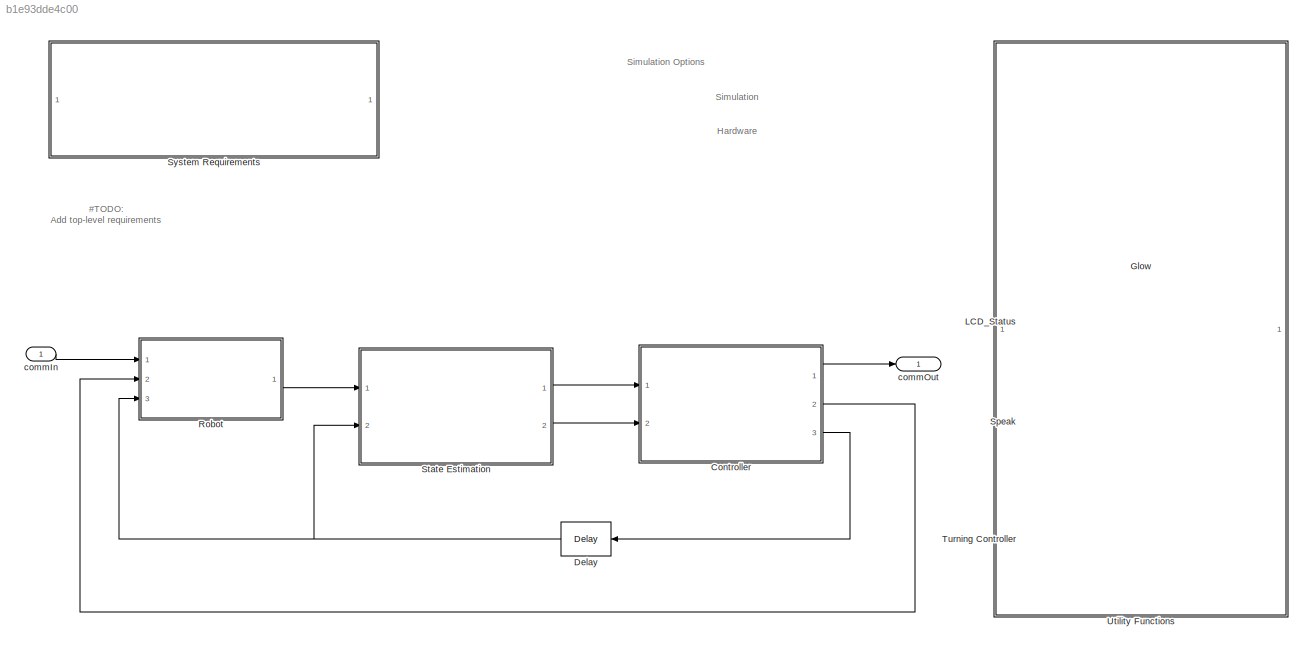
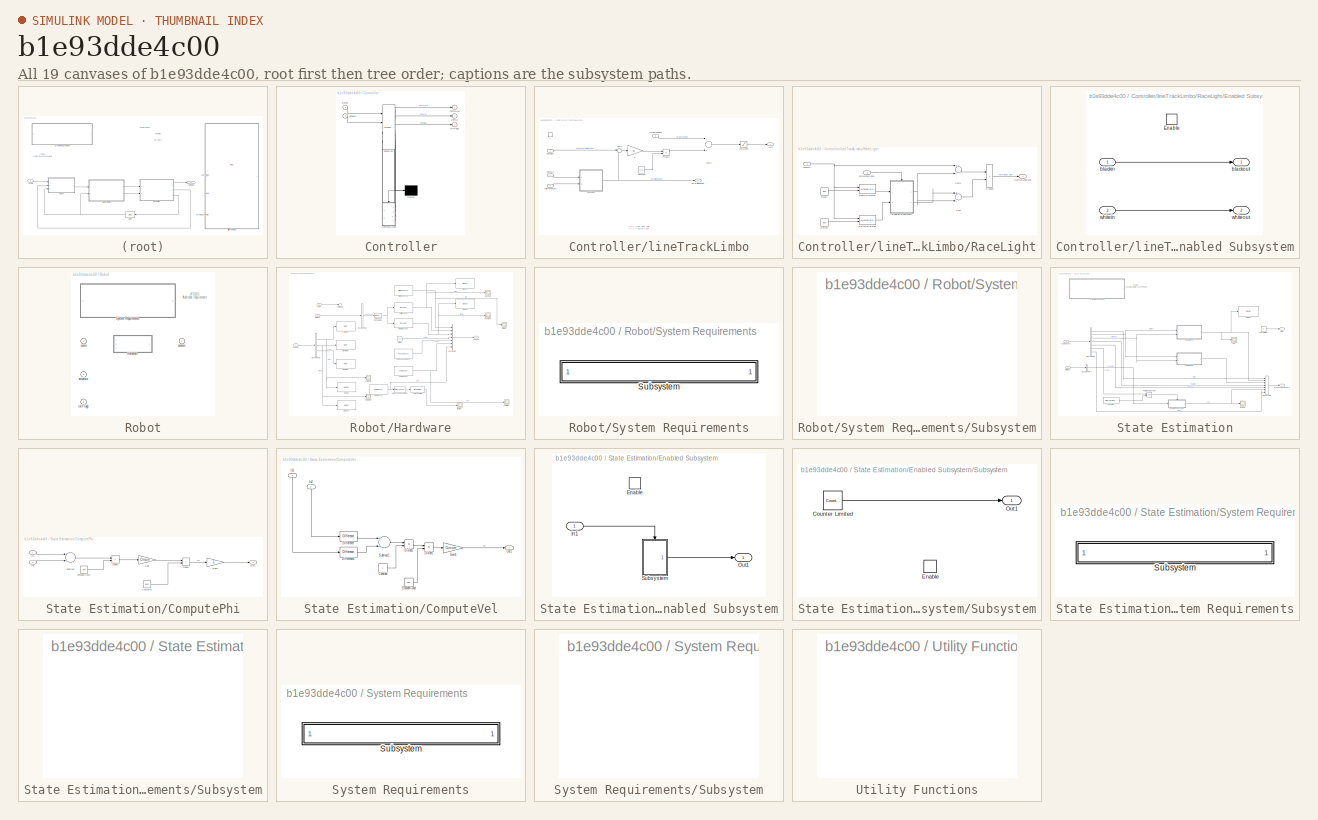
[diagram: thumbnail index - all 19 canvases of the model, root first then tree order]
MODEL slx_b1e93dde4c00
KIND model
BLOCK [SubSystem] Controller
  ErrorFcn = Stateflow.Translate.translate
  PermitHierarchicalResolution = ExplicitOnly
  Ports = [2, 3]
  RequestExecContextInheritance = off
  SFBlockType = Chart
  TreatAsAtomicUnit = on
BLOCK [Demux] Controller/ Demux 
  Outputs = 1
  Ports = [1, 1]
BLOCK [S-Function] Controller/ SFunction 
  EnableBusSupport = on
  FunctionName = sf_sfun
  Parameters = soundVal
  PortCounts = [4 8]
  Ports = [4, 8]
  Tag = Stateflow S-Function HydraLeg 5
BLOCK [Outport] Controller/commOut
  IconDisplay = Port number
BLOCK [Outport] Controller/control
  IconDisplay = Port number
  Port = 2
BLOCK [Outport] Controller/initFlags
  IconDisplay = Port number
  Port = 3
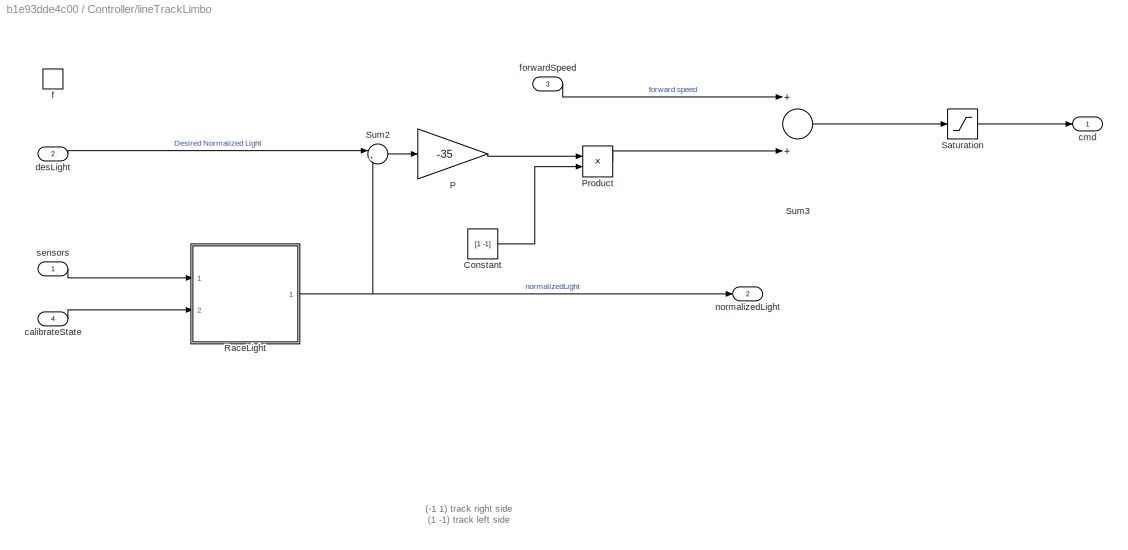
BLOCK [SubSystem] Controller/lineTrackLimbo
  Ports = [4, 2, 0, 1]
  PreDeleteFcn = Stateflow.SLINSF.SimulinkMan.removePreDeleteFcn
  RequestExecContextInheritance = off
  UndoDeleteFcn = Stateflow.SLINSF.SimulinkMan.restorePreDeleteFcn
BLOCK [Constant] Controller/lineTrackLimbo/Constant
  OutDataTypeStr = single
  SampleTime = -1
  Value = [1 -1]
BLOCK [Gain] Controller/lineTrackLimbo/P
  Gain = -35
  OutDataTypeStr = Inherit: Inherit via internal rule
  ParamDataTypeStr = Inherit: Inherit via internal rule
  SaturateOnIntegerOverflow = off
BLOCK [Product] Controller/lineTrackLimbo/Product
  InputSameDT = off
  OutDataTypeStr = Inherit: Inherit via internal rule
  Ports = [2, 1]
  RndMeth = Floor
  SaturateOnIntegerOverflow = off
BLOCK [SubSystem] Controller/lineTrackLimbo/RaceLight
  Ports = [2, 1]
  RequestExecContextInheritance = off
BLOCK [SubSystem] Controller/lineTrackLimbo/RaceLight/Enabled Subsystem
  Ports = [2, 2, 1]
  RequestExecContextInheritance = off
  TreatAsAtomicUnit = on
BLOCK [EnablePort] Controller/lineTrackLimbo/RaceLight/Enabled Subsystem/Enable
  Ports = []
BLOCK [Inport] Controller/lineTrackLimbo/RaceLight/Enabled Subsystem/blackin
  IconDisplay = Port number
BLOCK [Outport] Controller/lineTrackLimbo/RaceLight/Enabled Subsystem/blackout
  IconDisplay = Port number
BLOCK [Inport] Controller/lineTrackLimbo/RaceLight/Enabled Subsystem/whitein
  IconDisplay = Port number
  Port = 2
BLOCK [Outport] Controller/lineTrackLimbo/RaceLight/Enabled Subsystem/whiteout
  IconDisplay = Port number
  Port = 2
BLOCK [Outport] Controller/lineTrackLimbo/RaceLight/NormalizedLight
  IconDisplay = Port number
BLOCK [Product] Controller/lineTrackLimbo/RaceLight/Product
  InputSameDT = off
  Inputs = */
  OutDataTypeStr = Inherit: Inherit via internal rule
  Ports = [2, 1]
  RndMeth = Floor
  SaturateOnIntegerOverflow = off
BLOCK [Sum] Controller/lineTrackLimbo/RaceLight/Sum
  InputSameDT = off
  Inputs = +-
  OutDataTypeStr = Inherit: Inherit via internal rule
  Ports = [2, 1]
  SaturateOnIntegerOverflow = off
BLOCK [Sum] Controller/lineTrackLimbo/RaceLight/Sum1
  InputSameDT = off
  Inputs = +-
  OutDataTypeStr = Inherit: Inherit via internal rule
  Ports = [2, 1]
  SaturateOnIntegerOverflow = off
BLOCK [Constant] Controller/lineTrackLimbo/RaceLight/black1
  OutDataTypeStr = boolean
  SampleTime = -1
  Value = false
BLOCK [Reference] Controller/lineTrackLimbo/RaceLight/blackCalibrated   REF=simulink/Math
Operations/MinMax
Running
Resettable
  Function = min
  Ports = [2, 1]
  SourceBlock = simulink/Math\nOperations/MinMax\nRunning\nResettable
  SourceType = MinMax Running Resettable
  vinit = 10
BLOCK [Inport] Controller/lineTrackLimbo/RaceLight/calibrateState
  IconDisplay = Port number
  LockScale = on
  OutDataTypeStr = boolean
  Port = 2
  PortDimensions = 1
  SignalType = real
  VarSizeSig = No
BLOCK [Inport] Controller/lineTrackLimbo/RaceLight/sensors
  IconDisplay = Port number
  LockScale = on
  OutDataTypeStr = single
  PortDimensions = 1
  SignalType = real
  VarSizeSig = No
BLOCK [Constant] Controller/lineTrackLimbo/RaceLight/white2
  OutDataTypeStr = boolean
  SampleTime = -1
  Value = false
BLOCK [Reference] Controller/lineTrackLimbo/RaceLight/whiteCalibrated  REF=simulink/Math
Operations/MinMax
Running
Resettable
  Function = max
  Ports = [2, 1]
  SourceBlock = simulink/Math\nOperations/MinMax\nRunning\nResettable
  SourceType = MinMax Running Resettable
  vinit = 90
BLOCK [Saturate] Controller/lineTrackLimbo/Saturation
  InputPortMap = u0
  LowerLimit = -100
  OutDataTypeStr = single
  Ports = [1, 1]
  UpperLimit = 100
BLOCK [Sum] Controller/lineTrackLimbo/Sum2
  IconShape = round
  InputSameDT = off
  Inputs = |+-
  OutDataTypeStr = Inherit: Inherit via internal rule
  Ports = [2, 1]
  SaturateOnIntegerOverflow = off
BLOCK [Sum] Controller/lineTrackLimbo/Sum3
  InputSameDT = off
  OutDataTypeStr = Inherit: Inherit via internal rule
  Ports = [2, 1]
  SaturateOnIntegerOverflow = off
BLOCK [Inport] Controller/lineTrackLimbo/calibrateState
  IconDisplay = Port number
  LockScale = on
  OutDataTypeStr = boolean
  Port = 4
  PortDimensions = 1
  SignalType = real
  VarSizeSig = No
BLOCK [Outport] Controller/lineTrackLimbo/cmd
  IconDisplay = Port number
  OutDataTypeStr = single
  PortDimensions = 2
  SamplingMode = Sample based
  SignalType = real
  VarSizeSig = No
BLOCK [Inport] Controller/lineTrackLimbo/desLight
  IconDisplay = Port number
  OutDataTypeStr = single
  Port = 2
  PortDimensions = 1
  SignalType = real
  VarSizeSig = No
BLOCK [TriggerPort] Controller/lineTrackLimbo/f
  CopyFcn = Stateflow.SLINSF.SimulinkMan.removeBlockPreDeleteFcn
  Ports = []
  PreDeleteFcn = Stateflow.SLINSF.SimulinkMan.unsafePredeleteFcn
  StatesWhenEnabling = held
  TriggerType = function-call
BLOCK [Inport] Controller/lineTrackLimbo/forwardSpeed
  IconDisplay = Port number
  OutDataTypeStr = single
  Port = 3
  PortDimensions = 2
  SignalType = real
  VarSizeSig = No
BLOCK [Outport] Controller/lineTrackLimbo/normalizedLight
  IconDisplay = Port number
  OutDataTypeStr = single
  Port = 2
  PortDimensions = 1
  SamplingMode = Sample based
  SignalType = real
  VarSizeSig = No
BLOCK [Inport] Controller/lineTrackLimbo/sensors
  IconDisplay = Port number
  LockScale = on
  OutDataTypeStr = single
  PortDimensions = 1
  SignalType = real
  VarSizeSig = No
BLOCK [Inport] Controller/sensors
  IconDisplay = Port number
  Port = 2
BLOCK [Inport] Controller/states
  IconDisplay = Port number
BLOCK [Delay] Delay
  AttributesFormatString = Removes algebraic loop
  DelayLength = 1
  InputPortMap = u0
  Ports = [1, 1]
  SampleTime = tModel
BLOCK [Reference] Glow  REF=EV3Fcns/Glow
  Ports = [0, 0, 0, 1]
  SourceBlock = EV3Fcns/Glow
  SourceType = SubSystem
BLOCK [Reference] LCD_Status  REF=EV3Fcns/LCD_Status
  Ports = [0, 0, 0, 1]
  SourceBlock = EV3Fcns/LCD_Status
  SourceType = SubSystem
BLOCK [SubSystem] Robot
  OverrideUsingVariant = HardwareVar
  Ports = [3, 1]
  RequestExecContextInheritance = off
  Variant = on
  VariantControl = Variant1
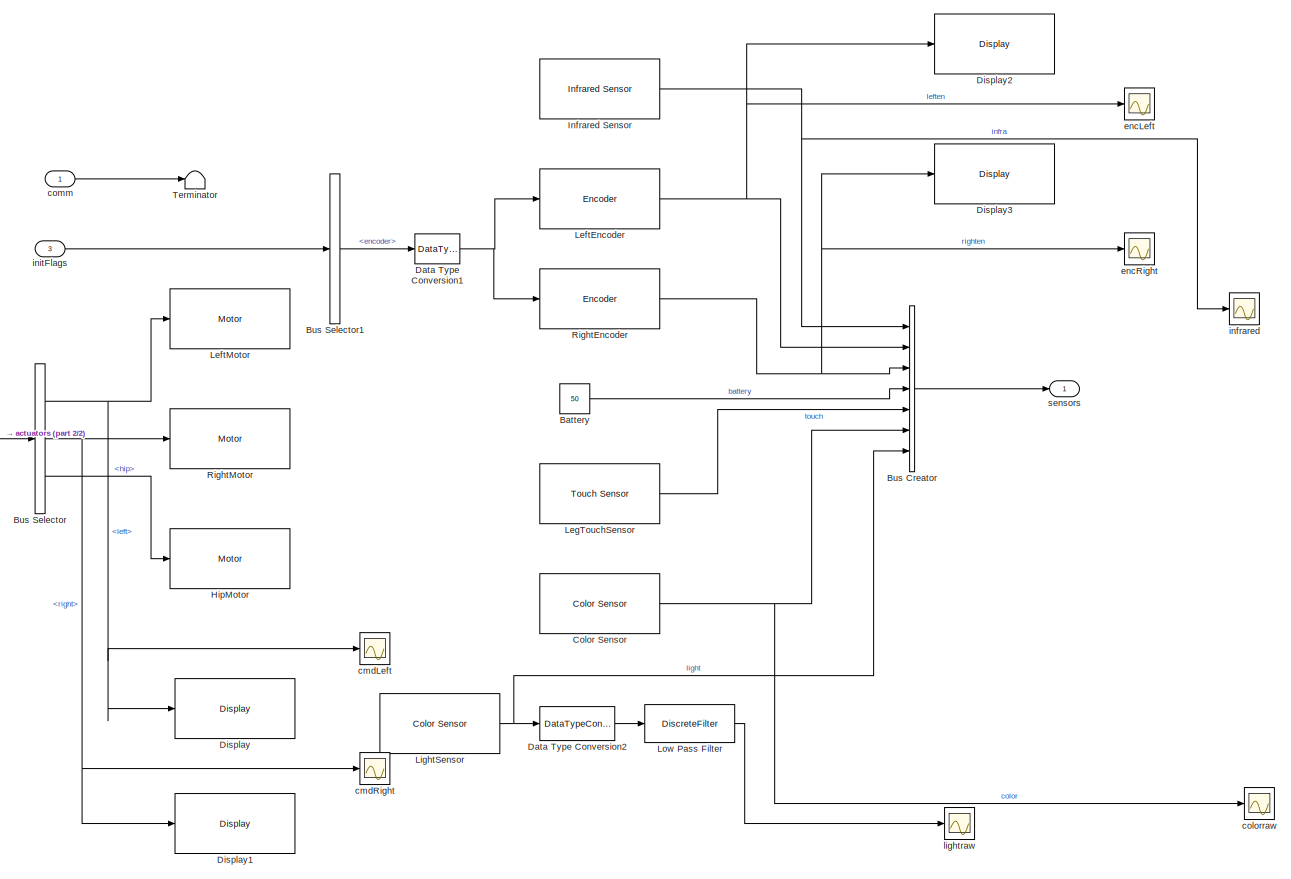
[diagram: Robot/Hardware - part 1/2, most of the canvas]
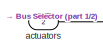
[diagram: Robot/Hardware - part 2/2, middle left region]
BLOCK [SubSystem] Robot/Hardware
  Ports = [3, 1]
  RequestExecContextInheritance = off
  VariantControl = HardwareVar
BLOCK [Constant] Robot/Hardware/Battery
  OutDataTypeStr = uint8
  SampleTime = tModel
  Value = 50
BLOCK [BusCreator] Robot/Hardware/Bus Creator
  DisplayOption = bar
  Inputs = 7
  OutDataTypeStr = Bus: Sensors_Bus
  Ports = [7, 1]
BLOCK [BusSelector] Robot/Hardware/Bus Selector
  OutputSignals = left,right,hip
  Ports = [1, 3]
BLOCK [BusSelector] Robot/Hardware/Bus Selector1
  OutputSignals = encoder
  Ports = [1, 1]
BLOCK [Reference] Robot/Hardware/Color Sensor  REF=legoev3lib/Color Sensor
  Ports = [0, 1]
  SourceBlock = legoev3lib/Color Sensor
  SourceType = LEGO MINDSTORMS EV3 Color Sensor
  mode = Ambient light intensity
  portNumber = 4
  sampleTime = tModel
BLOCK [DataTypeConversion] Robot/Hardware/Data Type Conversion1
  OutDataTypeStr = int8
  RndMeth = Floor
  SaturateOnIntegerOverflow = off
BLOCK [DataTypeConversion] Robot/Hardware/Data Type Conversion2
  Commented = on
  OutDataTypeStr = double
  RndMeth = Floor
  SaturateOnIntegerOverflow = off
BLOCK [Reference] Robot/Hardware/Display  REF=legoev3lib/Display
  Ports = [1]
  SourceBlock = legoev3lib/Display
  SourceType = LEGO MINDSTORMS EV3 Display
  slcdFormat = Decimal
  slcdLine = 1
  slcdStr = Left
BLOCK [Reference] Robot/Hardware/Display1  REF=legoev3lib/Display
  Ports = [1]
  SourceBlock = legoev3lib/Display
  SourceType = LEGO MINDSTORMS EV3 Display
  slcdFormat = Decimal
  slcdLine = 2
  slcdStr = Right
BLOCK [Reference] Robot/Hardware/Display2  REF=legoev3lib/Display
  Ports = [1]
  SourceBlock = legoev3lib/Display
  SourceType = LEGO MINDSTORMS EV3 Display
  slcdFormat = Decimal
  slcdLine = 4
  slcdStr = LeftEn
BLOCK [Reference] Robot/Hardware/Display3  REF=legoev3lib/Display
  Ports = [1]
  SourceBlock = legoev3lib/Display
  SourceType = LEGO MINDSTORMS EV3 Display
  slcdFormat = Decimal
  slcdLine = 5
  slcdStr = RightEn
BLOCK [Reference] Robot/Hardware/HipMotor  REF=legoev3lib/Motor
  Ports = [1]
  SourceBlock = legoev3lib/Motor
  SourceType = LEGO MINDSTORMS EV3 Motor
  sportNumber = D
  sstopAction = Brake
BLOCK [Reference] Robot/Hardware/Infrared Sensor  REF=legoev3lib/Infrared Sensor
  Ports = [0, 1]
  SourceBlock = legoev3lib/Infrared Sensor
  SourceType = LEGO MINDSTORMS EV3 Infrared Sensor
  channelNumber = 1
  portNumber = 2
  sampleTime = tModel
BLOCK [Reference] Robot/Hardware/LeftEncoder  REF=legoev3lib/Encoder
  Ports = [1, 1]
  SourceBlock = legoev3lib/Encoder
  SourceType = LEGO MINDSTORMS EV3 Encoder
  opMode = Reset by external signal
  portNumber = B
  sampleTime = tModel
BLOCK [Reference] Robot/Hardware/LeftMotor  REF=legoev3lib/Motor
  Ports = [1]
  SourceBlock = legoev3lib/Motor
  SourceType = LEGO MINDSTORMS EV3 Motor
  sportNumber = B
  sstopAction = Brake
BLOCK [Reference] Robot/Hardware/LegTouchSensor  REF=legoev3lib/Touch Sensor
  Ports = [0, 1]
  SourceBlock = legoev3lib/Touch Sensor
  SourceType = LEGO MINDSTORMS EV3 Touch Sensor
  portNumber = 1
  sampleTime = tModel
BLOCK [Reference] Robot/Hardware/LightSensor  REF=legoev3lib/Color Sensor
  Ports = [0, 1]
  SourceBlock = legoev3lib/Color Sensor
  SourceType = LEGO MINDSTORMS EV3 Color Sensor
  mode = Reflected light intensity
  portNumber = 3
  sampleTime = tModel
BLOCK [DiscreteFilter] Robot/Hardware/Low Pass Filter
  Commented = on
  Denominator = [1 -0.99]
  InputPortMap = u0
  Numerator = [.01]
  Ports = [1, 1]
BLOCK [Reference] Robot/Hardware/RightEncoder  REF=legoev3lib/Encoder
  Ports = [1, 1]
  SourceBlock = legoev3lib/Encoder
  SourceType = LEGO MINDSTORMS EV3 Encoder
  opMode = Reset by external signal
  portNumber = A
  sampleTime = tModel
BLOCK [Reference] Robot/Hardware/RightMotor  REF=legoev3lib/Motor
  Ports = [1]
  SourceBlock = legoev3lib/Motor
  SourceType = LEGO MINDSTORMS EV3 Motor
  sportNumber = A
  sstopAction = Brake
BLOCK [Terminator] Robot/Hardware/Terminator
BLOCK [Inport] Robot/Hardware/actuators
  IconDisplay = Port number
  Port = 2
BLOCK [Scope] Robot/Hardware/cmdLeft
  Floating = off
  NumInputPorts = 1
  Ports = [1]
  SaveName = ScopeData4
  ShowLegends = off
  YMax = 8
  YMin = 7
BLOCK [Scope] Robot/Hardware/cmdRight
  Floating = off
  NumInputPorts = 1
  Ports = [1]
  SaveName = ScopeData5
  ShowLegends = off
  YMax = 8
  YMin = 7
BLOCK [Scope] Robot/Hardware/colorraw
  Floating = off
  NumInputPorts = 1
  Ports = [1]
  SaveName = ScopeData1
  ShowLegends = off
  YMax = 1
  YMin = 0
BLOCK [Inport] Robot/Hardware/comm
  IconDisplay = Port number
BLOCK [Scope] Robot/Hardware/encLeft
  Floating = off
  NumInputPorts = 1
  Ports = [1]
  SaveName = ScopeData6
  ShowLegends = off
  YMax = 1
  YMin = -1
  ZoomMode = xonly
BLOCK [Scope] Robot/Hardware/encRight
  Floating = off
  NumInputPorts = 1
  Ports = [1]
  SaveName = ScopeData7
  ShowLegends = off
  TimeRange = 10
  YMax = 8
  YMin = 7
  ZoomMode = xonly
BLOCK [Scope] Robot/Hardware/infrared
  Floating = off
  NumInputPorts = 1
  Ports = [1]
  SaveName = ScopeData8
  ShowLegends = off
  TimeRange = 10
  YMax = 9
  YMin = 0
  ZoomMode = xonly
BLOCK [Inport] Robot/Hardware/initFlags
  IconDisplay = Port number
  Port = 3
BLOCK [Scope] Robot/Hardware/lightraw
  Floating = off
  NumInputPorts = 1
  Ports = [1]
  ShowLegends = off
  YMax = 10.15
  YMin = 9.75
BLOCK [Outport] Robot/Hardware/sensors
  IconDisplay = Port number
  OutDataTypeStr = Bus: Sensors_Bus
BLOCK [SubSystem] Robot/System Requirements
  CopyFcn = rmidispblock('create',gcbh)
  DeleteFcn = rmidispblock('delete',gcbh)
  LoadFcn = rmidispblock('load',gcbh)
  ModelCloseFcn = rmidispblock('close',gcbh)
  MoveFcn = rmidispblock('move',gcbh)
  OpenFcn = rmidispblock('open',gcbh)
  Ports = []
  PostSaveFcn = rmidispblock('open',gcbh)
  PreSaveFcn = rmidispblock('close',gcbh)
  RequestExecContextInheritance = off
  VariantControl = Variant
BLOCK [SubSystem] Robot/System Requirements/Subsystem
  OpenFcn = rmidispblock('openReq',gcbh);
  Ports = []
  RequestExecContextInheritance = off
BLOCK [Inport] Robot/actuators
  IconDisplay = Port number
  OutDataTypeStr = Bus: ControlBus
  Port = 2
BLOCK [Inport] Robot/comm
  IconDisplay = Port number
  OutDataTypeStr = Enum: Comm
BLOCK [Inport] Robot/initFlags
  IconDisplay = Port number
  OutDataTypeStr = Bus: InitBus
  Port = 3
BLOCK [Outport] Robot/sensors
  IconDisplay = Port number
  OutDataTypeStr = Bus: Sensors_Bus
BLOCK [Reference] Speak  REF=EV3Fcns/Speak
  Ports = [0, 0, 0, 1]
  SourceBlock = EV3Fcns/Speak
  SourceType = SubSystem
BLOCK [SubSystem] State Estimation
  Ports = [2, 2]
  RequestExecContextInheritance = off
BLOCK [BusCreator] State Estimation/Bus Creator
  DisplayOption = bar
  Inputs = 7
  Ports = [7, 1]
BLOCK [BusSelector] State Estimation/Bus Selector
  OutputSignals = infra,leften,righten,battery,touch,color,light
  Ports = [1, 7]
BLOCK [BusSelector] State Estimation/Bus Selector1
  OutputSignals = counter
  Ports = [1, 1]
BLOCK [SubSystem] State Estimation/ComputePhi
  Ports = [2, 1]
  RequestExecContextInheritance = off
BLOCK [Constant] State Estimation/ComputePhi/Constant1
  OutDataTypeStr = single
  SampleTime = tModel
  Value = lever
BLOCK [Product] State Estimation/ComputePhi/Divide
  InputSameDT = off
  Inputs = */
  OutDataTypeStr = single
  Ports = [2, 1]
  RndMeth = Floor
  SaturateOnIntegerOverflow = off
BLOCK [Product] State Estimation/ComputePhi/Divide1
  InputSameDT = off
  Inputs = */
  OutDataTypeStr = single
  Ports = [2, 1]
  RndMeth = Floor
  SaturateOnIntegerOverflow = off
BLOCK [Constant] State Estimation/ComputePhi/EncoderConst
  OutDataTypeStr = int32
  SampleTime = tModel
  Value = 360
BLOCK [Gain] State Estimation/ComputePhi/Gain
  Gain = Circum
  OutDataTypeStr = single
  ParamDataTypeStr = Inherit: Inherit via internal rule
  SaturateOnIntegerOverflow = off
BLOCK [Gain] State Estimation/ComputePhi/Gain1
  Gain = -1
  OutDataTypeStr = single
  ParamDataTypeStr = Inherit: Inherit via internal rule
  SaturateOnIntegerOverflow = off
BLOCK [Inport] State Estimation/ComputePhi/In1
  IconDisplay = Port number
BLOCK [Inport] State Estimation/ComputePhi/In2
  IconDisplay = Port number
  Port = 2
BLOCK [Outport] State Estimation/ComputePhi/Out1
  IconDisplay = Port number
BLOCK [Sum] State Estimation/ComputePhi/Subtract
  InputSameDT = off
  Inputs = +-
  OutDataTypeStr = Inherit: Inherit via internal rule
  Ports = [2, 1]
  SaturateOnIntegerOverflow = off
BLOCK [SubSystem] State Estimation/ComputeVel
  Ports = [2, 1]
  RequestExecContextInheritance = off
BLOCK [Constant] State Estimation/ComputeVel/Constant
  OutDataTypeStr = uint8
  SampleTime = tModel
  Value = 2
BLOCK [Reference] State Estimation/ComputeVel/Difference  REF=simulink/Discrete/Difference
  DoSatur = off
  ICPrevInput = 0.0
  InputProcessing = Inherited
  LockScale = off
  OutDataType = fixdt(1, 16)
  OutDataTypeStr = single
  OutMax = []
  OutMin = []
  OutScaling = 2^-10
  OutputDataTypeScalingMode = single
  Ports = [1, 1]
  RndMeth = Floor
  SourceBlock = simulink/Discrete/Difference
  SourceType = Difference
BLOCK [Reference] State Estimation/ComputeVel/Difference1  REF=simulink/Discrete/Difference
  DoSatur = off
  ICPrevInput = 0.0
  InputProcessing = Inherited
  LockScale = off
  OutDataType = fixdt(1, 16)
  OutDataTypeStr = single
  OutMax = []
  OutMin = []
  OutScaling = 2^-10
  OutputDataTypeScalingMode = single
  Ports = [1, 1]
  RndMeth = Floor
  SourceBlock = simulink/Discrete/Difference
  SourceType = Difference
BLOCK [Product] State Estimation/ComputeVel/Divide1
  InputSameDT = off
  Inputs = */
  OutDataTypeStr = single
  Ports = [2, 1]
  RndMeth = Floor
  SaturateOnIntegerOverflow = off
BLOCK [Product] State Estimation/ComputeVel/Divide2
  InputSameDT = off
  Inputs = */
  OutDataTypeStr = single
  Ports = [2, 1]
  RndMeth = Floor
  SaturateOnIntegerOverflow = off
BLOCK [Constant] State Estimation/ComputeVel/EncoderConst
  OutDataTypeStr = single
  SampleTime = tModel
  Value = 360
BLOCK [Gain] State Estimation/ComputeVel/Gain1
  Gain = Circum
  OutDataTypeStr = single
  ParamDataTypeStr = Inherit: Inherit via internal rule
  SaturateOnIntegerOverflow = off
BLOCK [Inport] State Estimation/ComputeVel/In1
  IconDisplay = Port number
BLOCK [Inport] State Estimation/ComputeVel/In2
  IconDisplay = Port number
  Port = 2
BLOCK [Outport] State Estimation/ComputeVel/Out1
  IconDisplay = Port number
BLOCK [Sum] State Estimation/ComputeVel/Subtract1
  InputSameDT = off
  OutDataTypeStr = Inherit: Inherit via internal rule
  Ports = [2, 1]
  SaturateOnIntegerOverflow = off
BLOCK [Constant] State Estimation/Constant
  Value = lightThreshold
BLOCK [Reference] State Estimation/Display  REF=legoev3lib/Display
  Ports = [1]
  SourceBlock = legoev3lib/Display
  SourceType = LEGO MINDSTORMS EV3 Display
  slcdFormat = Decimal
  slcdLine = 3
  slcdStr = phi
BLOCK [SubSystem] State Estimation/Enabled Subsystem
  Ports = [1, 1, 1]
  RequestExecContextInheritance = off
  TreatAsAtomicUnit = on
BLOCK [EnablePort] State Estimation/Enabled Subsystem/Enable
  Ports = []
BLOCK [Inport] State Estimation/Enabled Subsystem/In1
  IconDisplay = Port number
BLOCK [Outport] State Estimation/Enabled Subsystem/Out1
  IconDisplay = Port number
BLOCK [SubSystem] State Estimation/Enabled Subsystem/Subsystem
  Ports = [0, 1, 1]
  RequestExecContextInheritance = off
BLOCK [Reference] State Estimation/Enabled Subsystem/Subsystem/Counter Limited  REF=simulink/Sources/Counter
Limited
  Ports = [0, 1]
  SourceBlock = simulink/Sources/Counter\nLimited
  SourceType = Counter Limited
  tsamp = -1
  uplimit = 100
BLOCK [EnablePort] State Estimation/Enabled Subsystem/Subsystem/Enable
  Ports = []
  StatesWhenEnabling = reset
BLOCK [Outport] State Estimation/Enabled Subsystem/Subsystem/Out1
  IconDisplay = Port number
BLOCK [RelationalOperator] State Estimation/Relational Operator
  InputSameDT = off
  OutDataTypeStr = boolean
  Ports = [2, 1]
BLOCK [Scope] State Estimation/Scope
  Floating = off
  NumInputPorts = 1
  Ports = [1]
  SaveName = ScopeData2
  ShowLegends = off
  YMax = 45
  YMin = 43
BLOCK [SubSystem] State Estimation/System Requirements
  CopyFcn = rmidispblock('create',gcbh)
  DeleteFcn = rmidispblock('delete',gcbh)
  LoadFcn = rmidispblock('load',gcbh)
  ModelCloseFcn = rmidispblock('close',gcbh)
  MoveFcn = rmidispblock('move',gcbh)
  OpenFcn = rmidispblock('open',gcbh)
  Ports = []
  PostSaveFcn = rmidispblock('open',gcbh)
  PreSaveFcn = rmidispblock('close',gcbh)
  RequestExecContextInheritance = off
BLOCK [SubSystem] State Estimation/System Requirements/Subsystem
  OpenFcn = rmidispblock('openReq',gcbh);
  Ports = []
  RequestExecContextInheritance = off
BLOCK [Constant] State Estimation/Zero States
  OutDataTypeStr = Bus: States_Bus
  SampleTime = tModel
  Value = 0
BLOCK [Inport] State Estimation/initFlags
  IconDisplay = Port number
  OutDataTypeStr = Bus: InitBus
  Port = 2
BLOCK [Scope] State Estimation/phi
  Floating = off
  NumInputPorts = 1
  Ports = [1]
  SaveName = ScopeData3
  ShowLegends = off
  YMax = 1
  YMin = -1
  ZoomMode = yonly
BLOCK [Outport] State Estimation/processedSensors
  IconDisplay = Port number
  OutDataTypeStr = Bus: PSensors_Bus
  Port = 2
BLOCK [Inport] State Estimation/rawSensors
  IconDisplay = Port number
  OutDataTypeStr = Bus: Sensors_Bus
BLOCK [Outport] State Estimation/states
  IconDisplay = Port number
  OutDataTypeStr = Bus: States_Bus
BLOCK [SubSystem] System Requirements
  CopyFcn = rmidispblock('create',gcbh)
  DeleteFcn = rmidispblock('delete',gcbh)
  LoadFcn = rmidispblock('load',gcbh)
  ModelCloseFcn = rmidispblock('close',gcbh)
  MoveFcn = rmidispblock('move',gcbh)
  OpenFcn = rmidispblock('open',gcbh)
  Ports = []
  PostSaveFcn = rmidispblock('open',gcbh)
  PreSaveFcn = rmidispblock('close',gcbh)
  RequestExecContextInheritance = off
BLOCK [SubSystem] System Requirements/Subsystem
  OpenFcn = rmidispblock('openReq',gcbh);
  Ports = []
  RequestExecContextInheritance = off
BLOCK [Reference] Turning Controller  REF=EV3Fcns/Turning Controller
  Ports = [0, 0, 0, 1]
  SourceBlock = EV3Fcns/Turning Controller
  SourceType = SubSystem
BLOCK [SubSystem] Utility Functions
  Ports = []
  RequestExecContextInheritance = off
BLOCK [Inport] commIn
  IconDisplay = Port number
  OutDataTypeStr = Enum: Comm
BLOCK [Outport] commOut
  IconDisplay = Port number
  OutDataTypeStr = Enum: Comm
ANNOTATION (root): #TODO: Add top-level requirements
ANNOTATION (root): Simulation Options
ANNOTATION (root): Hardware
ANNOTATION (root): Simulation
ANNOTATION Controller/lineTrackLimbo: (-1 1) track right side (1 -1) track left side
ANNOTATION Robot: #TODO: Add robot requirements
ANNOTATION State Estimation: #TODO: Add state estimation requirements
LINE Controller:1 -> commOut:1
LINE Controller:2 -> Robot:2
LINE Controller:3 -> Delay:1
NET Delay:1 -> Robot:3, State Estimation:2
LINE Robot/Hardware/Battery:1 -> Robot/Hardware/Bus Creator:4
LINE Robot/Hardware/Bus Creator:1 -> Robot/Hardware/sensors:1
LINE Robot/Hardware/Bus Selector1:1 -> Robot/Hardware/Data Type Conversion1:1
NET Robot/Hardware/Bus Selector:1 -> Robot/Hardware/Display:1, Robot/Hardware/LeftMotor:1, Robot/Hardware/cmdLeft:1
NET Robot/Hardware/Bus Selector:2 -> Robot/Hardware/Display1:1, Robot/Hardware/RightMotor:1, Robot/Hardware/cmdRight:1
LINE Robot/Hardware/Bus Selector:3 -> Robot/Hardware/HipMotor:1
NET Robot/Hardware/Color Sensor:1 -> Robot/Hardware/Bus Creator:6, Robot/Hardware/colorraw:1
NET Robot/Hardware/Data Type Conversion1:1 -> Robot/Hardware/LeftEncoder:1, Robot/Hardware/RightEncoder:1
LINE Robot/Hardware/Data Type Conversion2:1 -> Robot/Hardware/Low Pass Filter:1
NET Robot/Hardware/Infrared Sensor:1 -> Robot/Hardware/Bus Creator:1, Robot/Hardware/infrared:1
NET Robot/Hardware/LeftEncoder:1 -> Robot/Hardware/Bus Creator:2, Robot/Hardware/Display2:1, Robot/Hardware/encLeft:1
LINE Robot/Hardware/LegTouchSensor:1 -> Robot/Hardware/Bus Creator:5
NET Robot/Hardware/LightSensor:1 -> Robot/Hardware/Bus Creator:7, Robot/Hardware/Data Type Conversion2:1
LINE Robot/Hardware/Low Pass Filter:1 -> Robot/Hardware/lightraw:1
NET Robot/Hardware/RightEncoder:1 -> Robot/Hardware/Bus Creator:3, Robot/Hardware/Display3:1, Robot/Hardware/encRight:1
LINE Robot/Hardware/actuators:1 -> Robot/Hardware/Bus Selector:1
LINE Robot/Hardware/comm:1 -> Robot/Hardware/Terminator:1
LINE Robot/Hardware/initFlags:1 -> Robot/Hardware/Bus Selector1:1
LINE Robot:1 -> State Estimation:1
LINE State Estimation/Bus Creator:1 -> State Estimation/processedSensors:1
LINE State Estimation/Bus Selector1:1 -> State Estimation/Enabled Subsystem:1
LINE State Estimation/Bus Selector:1 -> State Estimation/Bus Creator:1
NET State Estimation/Bus Selector:2 -> State Estimation/ComputePhi:1, State Estimation/ComputeVel:1
NET State Estimation/Bus Selector:3 -> State Estimation/ComputePhi:2, State Estimation/ComputeVel:2
LINE State Estimation/Bus Selector:4 -> State Estimation/Bus Creator:4
LINE State Estimation/Bus Selector:5 -> State Estimation/Bus Creator:5
LINE State Estimation/Bus Selector:6 -> State Estimation/Relational Operator:1
LINE State Estimation/Bus Selector:7 -> State Estimation/Bus Creator:7
LINE State Estimation/ComputePhi/Constant1:1 -> State Estimation/ComputePhi/Divide1:2
LINE State Estimation/ComputePhi/Divide1:1 -> State Estimation/ComputePhi/Gain1:1
LINE State Estimation/ComputePhi/Divide:1 -> State Estimation/ComputePhi/Gain:1
LINE State Estimation/ComputePhi/EncoderConst:1 -> State Estimation/ComputePhi/Divide:2
LINE State Estimation/ComputePhi/Gain1:1 -> State Estimation/ComputePhi/Out1:1
LINE State Estimation/ComputePhi/Gain:1 -> State Estimation/ComputePhi/Divide1:1
LINE State Estimation/ComputePhi/In1:1 -> State Estimation/ComputePhi/Subtract:1
LINE State Estimation/ComputePhi/In2:1 -> State Estimation/ComputePhi/Subtract:2
LINE State Estimation/ComputePhi/Subtract:1 -> State Estimation/ComputePhi/Divide:1
NET State Estimation/ComputePhi:1 -> State Estimation/Bus Creator:2, State Estimation/Display:1, State Estimation/phi:1
LINE State Estimation/ComputeVel/Constant:1 -> State Estimation/ComputeVel/Divide2:2
LINE State Estimation/ComputeVel/Difference1:1 -> State Estimation/ComputeVel/Subtract1:2
LINE State Estimation/ComputeVel/Difference:1 -> State Estimation/ComputeVel/Subtract1:1
LINE State Estimation/ComputeVel/Divide1:1 -> State Estimation/ComputeVel/Gain1:1
LINE State Estimation/ComputeVel/Divide2:1 -> State Estimation/ComputeVel/Divide1:1
LINE State Estimation/ComputeVel/EncoderConst:1 -> State Estimation/ComputeVel/Divide1:2
LINE State Estimation/ComputeVel/Gain1:1 -> State Estimation/ComputeVel/Out1:1
LINE State Estimation/ComputeVel/In1:1 -> State Estimation/ComputeVel/Difference1:1
LINE State Estimation/ComputeVel/In2:1 -> State Estimation/ComputeVel/Difference:1
LINE State Estimation/ComputeVel/Subtract1:1 -> State Estimation/ComputeVel/Divide2:1
LINE State Estimation/ComputeVel:1 -> State Estimation/Bus Creator:3
LINE State Estimation/Constant:1 -> State Estimation/Relational Operator:2
LINE State Estimation/Enabled Subsystem/In1:1 -> State Estimation/Enabled Subsystem/Subsystem:enable
LINE State Estimation/Enabled Subsystem/Subsystem/Counter Limited:1 -> State Estimation/Enabled Subsystem/Subsystem/Out1:1
LINE State Estimation/Enabled Subsystem/Subsystem:1 -> State Estimation/Enabled Subsystem/Out1:1
NET State Estimation/Enabled Subsystem:1 -> State Estimation/Bus Creator:6, State Estimation/Scope:1
LINE State Estimation/Relational Operator:1 -> State Estimation/Enabled Subsystem:enable
LINE State Estimation/Zero States:1 -> State Estimation/states:1
LINE State Estimation/initFlags:1 -> State Estimation/Bus Selector1:1
LINE State Estimation/rawSensors:1 -> State Estimation/Bus Selector:1
LINE State Estimation:1 -> Controller:1
LINE State Estimation:2 -> Controller:2
LINE commIn:1 -> Robot:1
note: NET lines group one-source signal fan-out (src -> all destinations, sorted); 1:1 wires keep LINE
CHART Controller states=37 transitions=41
  STATE_LABEL '<!DOCTYPE HTML PUBLIC "-//W3C//DTD HTML 4.0//EN" "http://www.w3.org/TR/REC-html40/strict.dtd">\n<html><head><meta name="qrichtext" content="1" /><style type="text/css">\np, li { white-space: pre-wrap; }\n</style></head><body style=" font-family:\'Helvetica\'; font-size:12px; font-weight:400; font-style:normal;">\n<p style=" margin-top:0px; margin-bottom:0px; margin-left:0px; margin-right:0px; -qt-block-...<+680ch>'
  STATE_LABEL 'initBuses'
  STATE_LABEL '% Control bus\n{\ncontrol.left = int8(0);\ncontrol.right = int8(0);\ncontrol.hip = int8(0);\n}'
  STATE_LABEL '% Initialization flags\n{\ninitFlags.encoder = true;\ninitFlags.gyro = true;\ninitFlags.counter = true; \nphicum = single(0);\n}'
  STATE_LABEL 'NOPState\nen:\nn = single(1);\ninitBuses();\nSpeak(2);\ncommOut = Comm.NONE;\nphicum = single(0);\ninitFlags.counter = false;\nnormalizedLight = single(0.5);\ndu:\nGlow(1);\n'
  STATE_LABEL 'LegAction\nen:\nn = single(0);\ninitFlags.encoder = false;\ninitFlags.gyro = false;\ninitFlags.counter = true;\ndu:\nGlow(4);\n'
  STATE_LABEL 'initialPosition1\n'
  STATE_LABEL 'CalibrateLight\nen, du:\nStatusLCD(10);\nGlow(2);\nlineTrackLimbo(single(sensors.light),single(0.5), single([50; 50]), true);\n'
  STATE_LABEL 'rotateright\nen, du:\nmove(-45, 0, 20);\n'
  STATE_LABEL 'rotateleft\nen, du:\nmove(45, 0, 20);'
  STATE_LABEL 'initialPosition1\nen:\nstop();\n'
  STATE_LABEL 'initialPosition2\nen:\nstop();'
  STATE_LABEL 'initialPosition\nen, du:\nmove(0, 0, 20);'
  STATE_LABEL 'after(1, sec)'
  STATE_LABEL '[sensors.phi <= -45]'
  STATE_LABEL '[sensors.phi >= 45]'
  STATE_LABEL 'after(1, sec)'
  STATE_LABEL '[sensors.phi >= 0]'
  STATE_LABEL 'WaitForLight\nen,du:\nStatusLCD(400);\nGlow(1);'
  STATE_LABEL 'Turn\nen,du:\nStatusLCD(300);\nmove(45, 0, 20);\nGlow(4);\n'
  STATE_LABEL 'Turn1\nen:\nStatusLCD(300);\nGlow(4); %blink green'
  STATE_LABEL 'Wait1\nen:\nstop();\nGlow(4);'
  STATE_LABEL 'WarZoneStop\nen,du:\nStatusLCD(400);\nGlow(3);\nstop();\nSpeak(50);'
  STATE_LABEL 'LineTrack\nen, du:\nStatusLCD(500);\nGlow(6); %blink orange\nlinetrack(30);'
  STATE_LABEL 'Wait2\nen, du:\nstop();\nGlow(4);\nSpeak(50);'
  STATE_LABEL 'WZBackward\nen,du:\nStatusLCD(400);\nGlow(2);\nmove(0, -40, 0);'
  STATE_LABEL 'Turn2\nen,du:\nmove(0, 0, 20);\nGlow(4);\nnormalizedLight = getNormalizedLight();'
  STATE_LABEL 'WZForward\nen,du:\nStatusLCD(400);\nGlow(2);\nmove(0, 40, 0);'
  STATE_LABEL 'Rotate360\nen:\nstop();\ndu:\nmove(495,0,20);\nGlow(5);'
  STATE_LABEL 'WZStop\nen, du:\nstop();\nGlow(2);\nSpeak(50);'
  STATE_LABEL 'WZStop1\nen, du:\nstop();\nGlow(2);\nSpeak(50);'
  STATE_LABEL 'RotateToNXT\nen,du:\nStatusLCD(400);\nGlow(5);\ncontrol.left = int8(40);\ncontrol.right = int8(-40);'
  STATE_LABEL 'RotateToNXT2\nen,du:\nGlow(5);\ncontrol.left = int8(30);\ncontrol.right = int8(-30);\nnormalizedLight = getNormalizedLight();'
  STATE_LABEL 'WZBackward10\nen,du:\nStatusLCD(400);\nGlow(2);\nmove(0, -40, 0);'
  STATE_LABEL 'Stop\nen,du:\nstop();\nGlow(5);'
  STATE_LABEL 'LineTrack2\nen, du:\nStatusLCD(500);\nGlow(5);\nlinetrack(20);\nSpeak(50);'
  STATE_LABEL 'Rotate\nen:\nstop();\ndu:\nmove(300,0,20);\nGlow(5);\nSpeak(50);'
  STATE_LABEL 'AttackNXT\nen,du:\nmove(0, 50, 0);\nGlow(5);'
  STATE_LABEL 'after(1, sec)'
  STATE_LABEL 'after(3,sec)'
